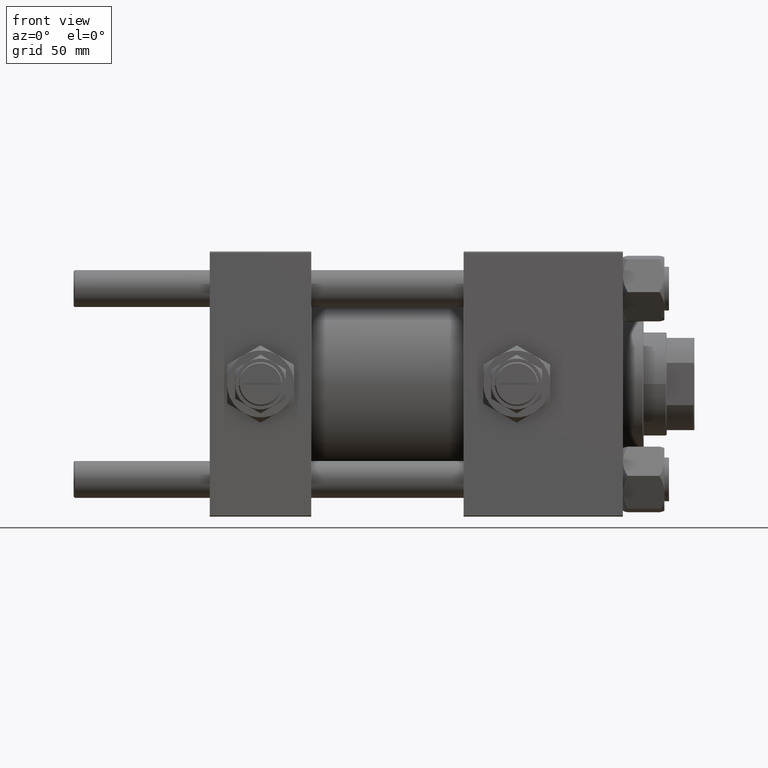
[diagram: clean part render]
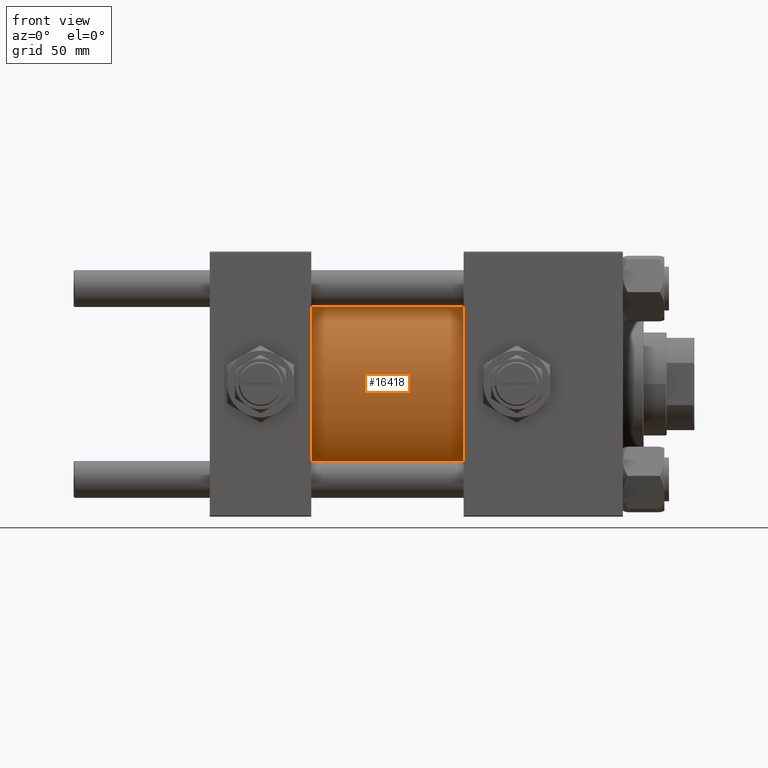
[diagram: same view with one face highlighted and labeled with its STEP entity id]
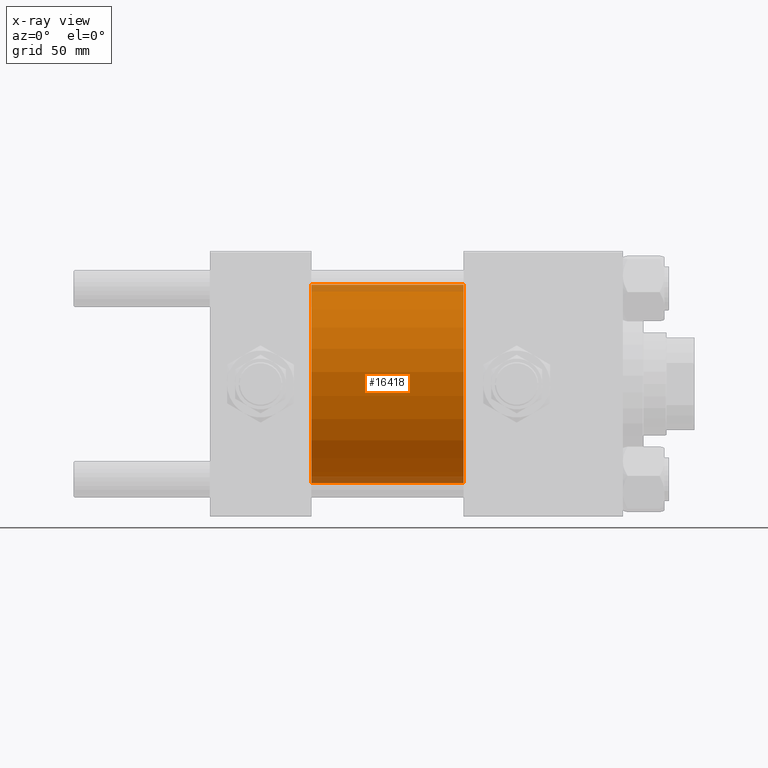
[diagram: x-ray of the same camera — body ghosted, the highlighted face saturated]
A machine part, front view. The second image highlights one B-rep face of the part: STEP entity #16418.
The next image is the same camera in x-ray: the body ghosted, the highlighted face saturated — about 7% of this face is hidden behind the body in this view.
In plain terms, the highlighted cylindrical surface (partial cylindrical patch) has radius 43 mm, axis along (-1, -0, -0).
Its self-contained STEP definition (entity closure, byte-faithful):
#3403 = VERTEX_POINT ( 'NONE', #22361 ) ;
#3550 = DIRECTION ( 'NONE',  ( 0.000000000000000000, 0.000000000000000000, 1.000000000000000000 ) ) ;
#3826 = DIRECTION ( 'NONE',  ( 1.000000000000000000, -0.000000000000000000, 0.000000000000000000 ) ) ;
#4408 = EDGE_LOOP ( 'NONE', ( #44746, #23663, #51022, #4789 ) ) ;
#4507 = CARTESIAN_POINT ( 'NONE',  ( 110.0000000000000000, 5.265981236333618470E-15, -43.00000000000000000 ) ) ;
#4789 = ORIENTED_EDGE ( 'NONE', *, *, #12212, .T. ) ;
#5209 = FACE_OUTER_BOUND ( 'NONE', #4408, .T. ) ;
#8007 = DIRECTION ( 'NONE',  ( -1.000000000000000000, -0.000000000000000000, -0.000000000000000000 ) ) ;
#8091 = EDGE_CURVE ( 'NONE', #3403, #39929, #38183, .T. ) ;
#11203 = CIRCLE ( 'NONE', #34071, 43.00000000000000000 ) ;
#12212 = EDGE_CURVE ( 'NONE', #39929, #40933, #11203, .T. ) ;
#13679 = CYLINDRICAL_SURFACE ( 'NONE', #40172, 43.00000000000000000 ) ;
#16161 = DIRECTION ( 'NONE',  ( 1.000000000000000000, 0.000000000000000000, 0.000000000000000000 ) ) ;
#16334 = AXIS2_PLACEMENT_3D ( 'NONE', #19886, #16161, #48517 ) ;
#16418 = ADVANCED_FACE ( 'NONE', ( #5209 ), #13679, .T. ) ;
#17837 = VECTOR ( 'NONE', #29704, 1000.000000000000000 ) ;
#19886 = CARTESIAN_POINT ( 'NONE',  ( 110.0000000000000000, 0.000000000000000000, 0.000000000000000000 ) ) ;
#19983 = CARTESIAN_POINT ( 'NONE',  ( 44.00000000000000000, 0.000000000000000000, 0.000000000000000000 ) ) ;
#22361 = CARTESIAN_POINT ( 'NONE',  ( 110.0000000000000000, 0.000000000000000000, 43.00000000000000000 ) ) ;
#22424 = EDGE_CURVE ( 'NONE', #3403, #22482, #23929, .T. ) ;
#22482 = VERTEX_POINT ( 'NONE', #4507 ) ;
#23663 = ORIENTED_EDGE ( 'NONE', *, *, #22424, .F. ) ;
#23929 = CIRCLE ( 'NONE', #16334, 43.00000000000000000 ) ;
#24179 = CARTESIAN_POINT ( 'NONE',  ( 110.0000000000000000, 5.265981236333618470E-15, -43.00000000000000000 ) ) ;
#24433 = CARTESIAN_POINT ( 'NONE',  ( 44.00000000000000000, 5.265981236333618470E-15, -43.00000000000000000 ) ) ;
#25616 = DIRECTION ( 'NONE',  ( -1.000000000000000000, -0.000000000000000000, -0.000000000000000000 ) ) ;
#26239 = CARTESIAN_POINT ( 'NONE',  ( 110.0000000000000000, 0.000000000000000000, 43.00000000000000000 ) ) ;
#29704 = DIRECTION ( 'NONE',  ( -1.000000000000000000, -0.000000000000000000, -0.000000000000000000 ) ) ;
#30286 = VECTOR ( 'NONE', #8007, 1000.000000000000000 ) ;
#34071 = AXIS2_PLACEMENT_3D ( 'NONE', #19983, #3826, #3550 ) ;
#37593 = EDGE_CURVE ( 'NONE', #22482, #40933, #39294, .T. ) ;
#38157 = CARTESIAN_POINT ( 'NONE',  ( 44.00000000000000000, 0.000000000000000000, 43.00000000000000000 ) ) ;
#38183 = LINE ( 'NONE', #26239, #17837 ) ;
#39294 = LINE ( 'NONE', #24179, #30286 ) ;
#39929 = VERTEX_POINT ( 'NONE', #38157 ) ;
#40172 = AXIS2_PLACEMENT_3D ( 'NONE', #45521, #25616, #42309 ) ;
#40933 = VERTEX_POINT ( 'NONE', #24433 ) ;
#42309 = DIRECTION ( 'NONE',  ( 0.000000000000000000, 0.000000000000000000, 1.000000000000000000 ) ) ;
#44746 = ORIENTED_EDGE ( 'NONE', *, *, #37593, .F. ) ;
#45521 = CARTESIAN_POINT ( 'NONE',  ( 110.0000000000000000, 0.000000000000000000, 0.000000000000000000 ) ) ;
#48517 = DIRECTION ( 'NONE',  ( 0.000000000000000000, 0.000000000000000000, -1.000000000000000000 ) ) ;
#51022 = ORIENTED_EDGE ( 'NONE', *, *, #8091, .T. ) ;